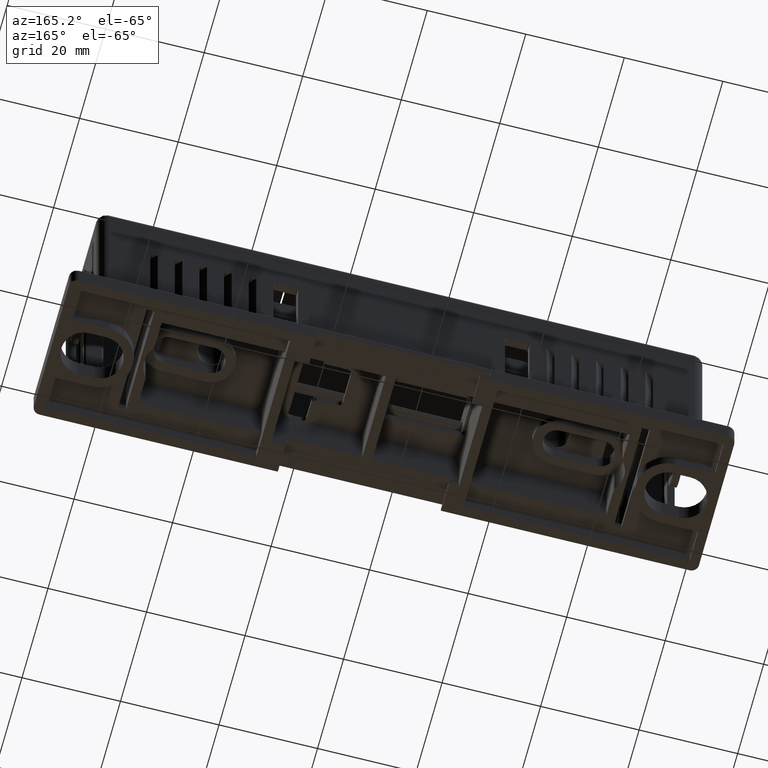
[diagram: clean part render]
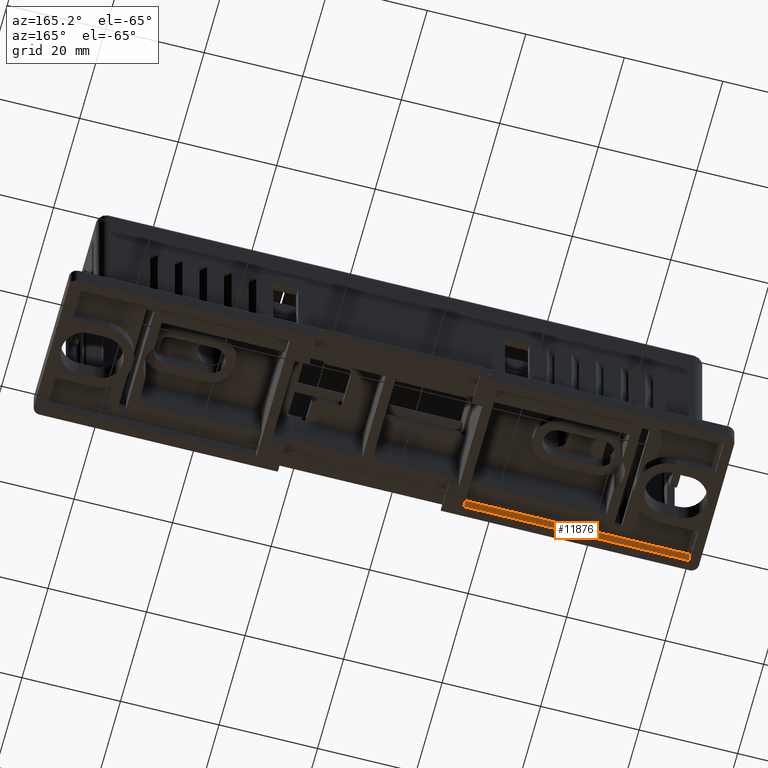
[diagram: same view with one face highlighted and labeled with its STEP entity id]
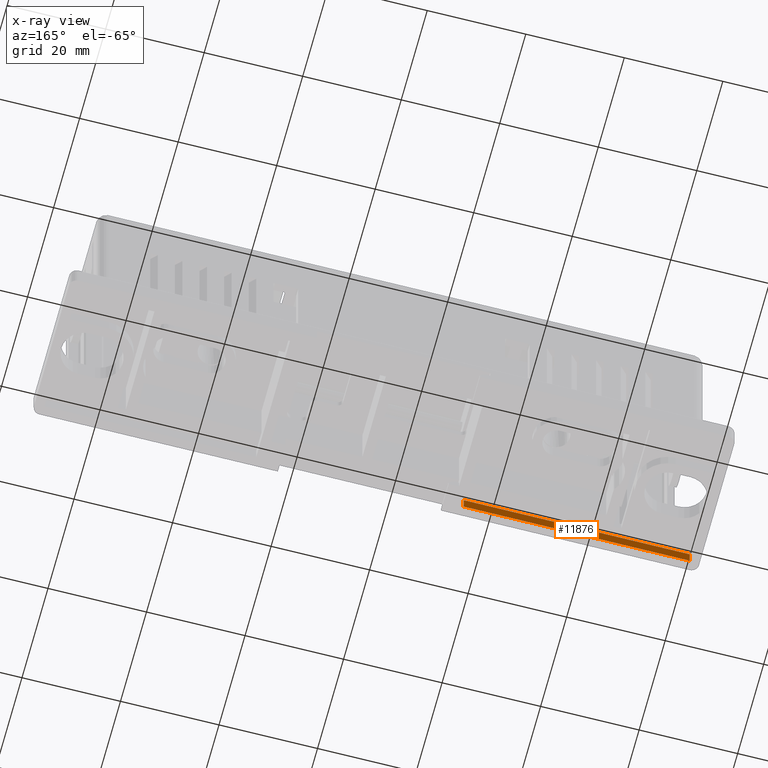
[diagram: x-ray of the same camera — body ghosted, the highlighted face saturated]
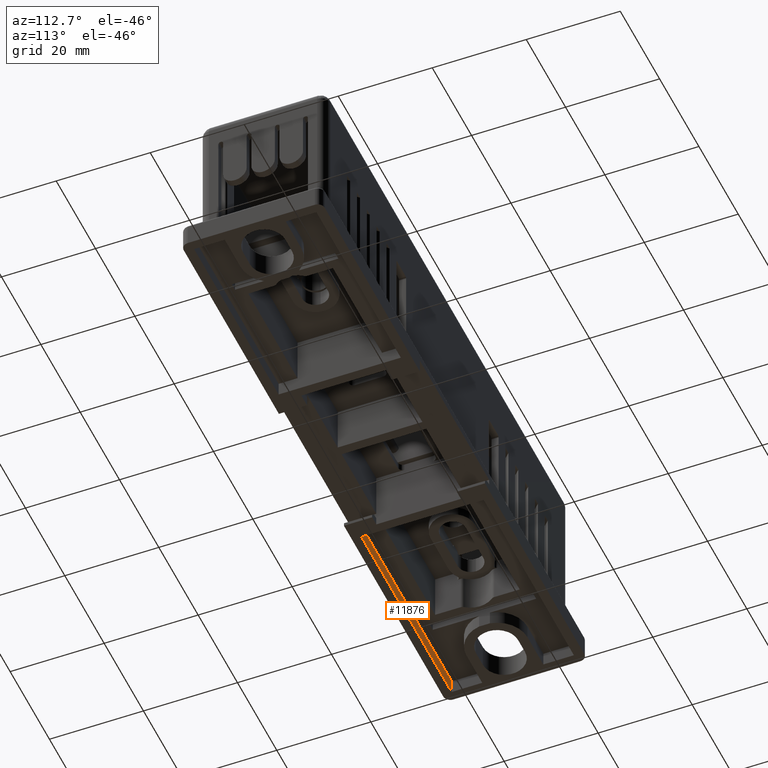
[diagram: same view with one face highlighted and labeled with its STEP entity id]
A machine part, auxiliary view. The second image highlights one B-rep face of the part: STEP entity #11876.
The next image is the same camera in x-ray: the body ghosted, the highlighted face saturated — about 0% of this face is hidden behind the body in this view.
A second angle (auxiliary view) of the same face is appended — the face is thin or edge-on in the first view.
In plain terms, the highlighted planar face has unit normal (0, -1, 0).
Its self-contained STEP definition (entity closure, byte-faithful):
#126 = PLANE ( 'NONE',  #9962 ) ;
#1075 = CARTESIAN_POINT ( 'NONE',  ( -0.8070866141732282451, -0.1181102362204724532, -0.5905511811023621549 ) ) ;
#1251 = DIRECTION ( 'NONE',  ( 0.000000000000000000, 0.000000000000000000, -1.000000000000000000 ) ) ;
#2596 = DIRECTION ( 'NONE',  ( 1.000000000000000000, 0.000000000000000000, -0.000000000000000000 ) ) ;
#2917 = EDGE_LOOP ( 'NONE', ( #3159, #5832, #3248, #5429 ) ) ;
#3159 = ORIENTED_EDGE ( 'NONE', *, *, #4612, .T. ) ;
#3248 = ORIENTED_EDGE ( 'NONE', *, *, #14357, .F. ) ;
#4382 = CARTESIAN_POINT ( 'NONE',  ( 0.9999999999999998890, -0.1181102362204724671, -0.5905511811023621549 ) ) ;
#4612 = EDGE_CURVE ( 'NONE', #10111, #5543, #10418, .T. ) ;
#5378 = CARTESIAN_POINT ( 'NONE',  ( -0.8070866141732283561, -0.1181102362204724532, -0.4724409448818898127 ) ) ;
#5414 = VECTOR ( 'NONE', #1251, 39.37007874015748143 ) ;
#5429 = ORIENTED_EDGE ( 'NONE', *, *, #15107, .F. ) ;
#5543 = VERTEX_POINT ( 'NONE', #13218 ) ;
#5832 = ORIENTED_EDGE ( 'NONE', *, *, #16302, .T. ) ;
#6204 = VECTOR ( 'NONE', #7642, 39.37007874015748143 ) ;
#7642 = DIRECTION ( 'NONE',  ( 0.000000000000000000, -0.000000000000000000, -1.000000000000000000 ) ) ;
#7732 = CARTESIAN_POINT ( 'NONE',  ( -0.8070866141732283561, -0.1181102362204724671, -0.5905511811023621549 ) ) ;
#8981 = VECTOR ( 'NONE', #2596, 39.37007874015748143 ) ;
#9113 = CARTESIAN_POINT ( 'NONE',  ( 1.003937007874015741, -0.1181102362204724532, -0.5905511811023621549 ) ) ;
#9471 = LINE ( 'NONE', #10560, #9929 ) ;
#9929 = VECTOR ( 'NONE', #15841, 39.37007874015748143 ) ;
#9962 = AXIS2_PLACEMENT_3D ( 'NONE', #9113, #14066, #12805 ) ;
#10111 = VERTEX_POINT ( 'NONE', #14506 ) ;
#10418 = LINE ( 'NONE', #5378, #8981 ) ;
#10560 = CARTESIAN_POINT ( 'NONE',  ( 1.771653543307086576, -0.1181102362204724809, -0.5905511811023621549 ) ) ;
#11330 = LINE ( 'NONE', #1075, #6204 ) ;
#11876 = ADVANCED_FACE ( 'NONE', ( #12882 ), #126, .F. ) ;
#12805 = DIRECTION ( 'NONE',  ( 0.000000000000000000, -0.000000000000000000, -1.000000000000000000 ) ) ;
#12882 = FACE_OUTER_BOUND ( 'NONE', #2917, .T. ) ;
#13218 = CARTESIAN_POINT ( 'NONE',  ( 0.9999999999999998890, -0.1181102362204724254, -0.4724409448818898682 ) ) ;
#13913 = VERTEX_POINT ( 'NONE', #7732 ) ;
#14028 = CARTESIAN_POINT ( 'NONE',  ( 1.000000000000000000, -0.1181102362204724116, -0.5905511811023621549 ) ) ;
#14066 = DIRECTION ( 'NONE',  ( 0.000000000000000000, -1.000000000000000000, 0.000000000000000000 ) ) ;
#14357 = EDGE_CURVE ( 'NONE', #13913, #16083, #9471, .T. ) ;
#14506 = CARTESIAN_POINT ( 'NONE',  ( -0.8070866141732283561, -0.1181102362204724671, -0.4724409448818898682 ) ) ;
#15107 = EDGE_CURVE ( 'NONE', #10111, #13913, #11330, .T. ) ;
#15280 = LINE ( 'NONE', #14028, #5414 ) ;
#15841 = DIRECTION ( 'NONE',  ( 1.000000000000000000, -0.000000000000000000, 0.000000000000000000 ) ) ;
#16083 = VERTEX_POINT ( 'NONE', #4382 ) ;
#16302 = EDGE_CURVE ( 'NONE', #5543, #16083, #15280, .T. ) ;